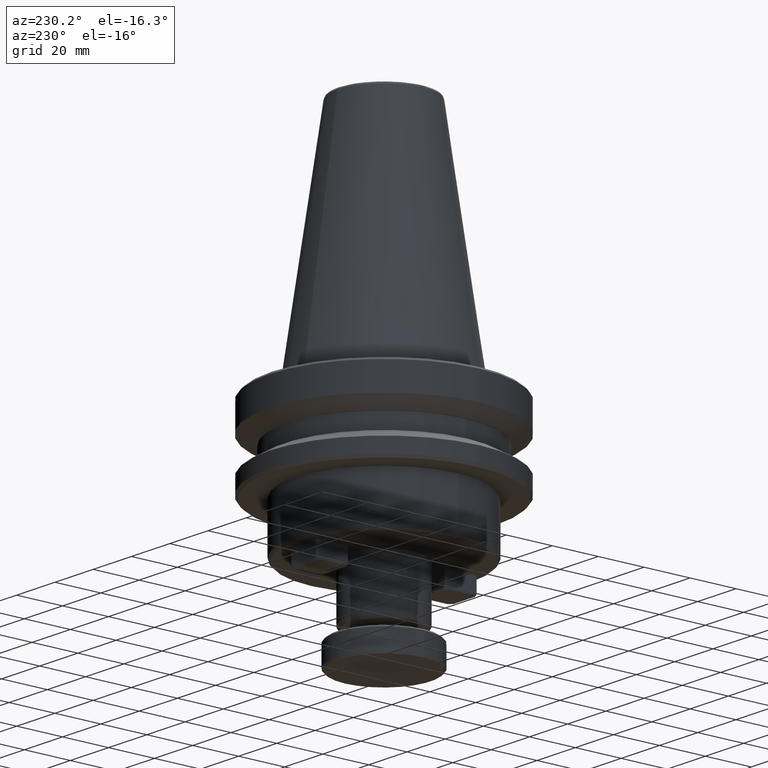
[diagram: clean part render]
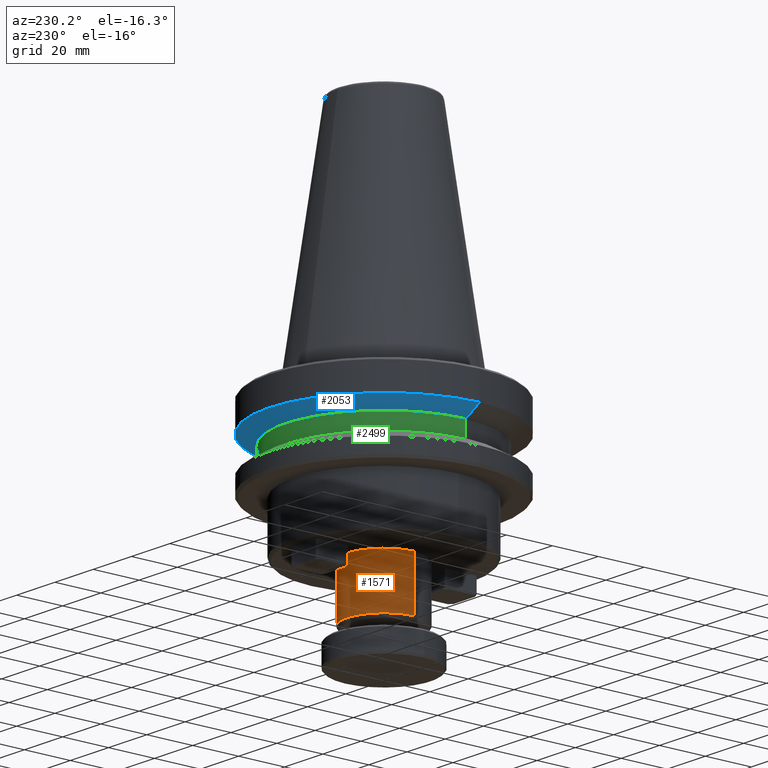
[diagram: same view with three faces highlighted in distinct colors, each labeled with its STEP entity id]
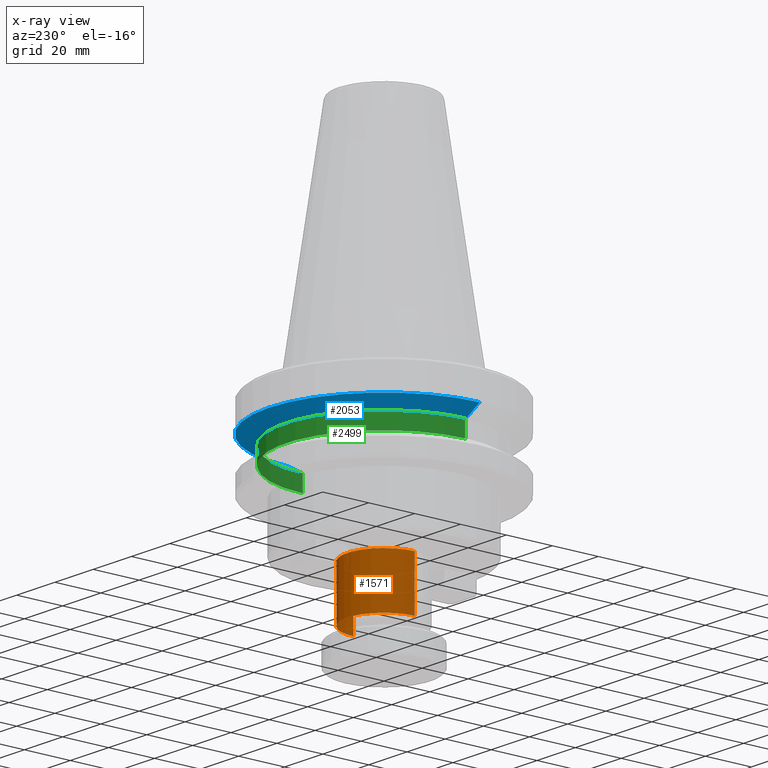
[diagram: x-ray of the same camera — body ghosted, the three highlighted faces saturated]
A machine part, auxiliary view with three faces highlighted in distinct colors.
The next image is the same camera in x-ray (body ghosted, the three faces saturated) — at least one of them is partly hidden behind the body in this view.
Their STEP definitions:

[orange] entity #1571 — the highlighted cylindrical surface (partial cylindrical patch) has radius 16 mm, axis along (0, 0, 1).
#92 = CARTESIAN_POINT ( 'NONE',  ( 0.0000000000000000000, 0.0000000000000000000, 118.5507178974871000 ) ) ;
#119 = EDGE_CURVE ( 'NONE', #840, #2500, #342, .T. ) ;
#281 = EDGE_CURVE ( 'NONE', #582, #2500, #1115, .T. ) ;
#342 = CIRCLE ( 'NONE', #1000, 16.00000000000000700 ) ;
#371 = FACE_OUTER_BOUND ( 'NONE', #2075, .T. ) ;
#492 = EDGE_CURVE ( 'NONE', #715, #840, #1220, .T. ) ;
#582 = VERTEX_POINT ( 'NONE', #1588 ) ;
#597 = VECTOR ( 'NONE', #2092, 1000.000000000000000 ) ;
#604 = CARTESIAN_POINT ( 'NONE',  ( 16.00000000000000700, 0.0000000000000000000, -60.00000000000001400 ) ) ;
#715 = VERTEX_POINT ( 'NONE', #895 ) ;
#730 = AXIS2_PLACEMENT_3D ( 'NONE', #92, #1397, #842 ) ;
#741 = VECTOR ( 'NONE', #1035, 1000.000000000000000 ) ;
#840 = VERTEX_POINT ( 'NONE', #604 ) ;
#842 = DIRECTION ( 'NONE',  ( 1.000000000000000000, 0.0000000000000000000, 0.0000000000000000000 ) ) ;
#861 = ORIENTED_EDGE ( 'NONE', *, *, #1983, .T. ) ;
#863 = ORIENTED_EDGE ( 'NONE', *, *, #281, .T. ) ;
#895 = CARTESIAN_POINT ( 'NONE',  ( 16.00000000000000700, 0.0000000000000000000, -82.52775681356645500 ) ) ;
#912 = ORIENTED_EDGE ( 'NONE', *, *, #492, .F. ) ;
#1000 = AXIS2_PLACEMENT_3D ( 'NONE', #1458, #1400, #1671 ) ;
#1035 = DIRECTION ( 'NONE',  ( 0.0000000000000000000, 0.0000000000000000000, 1.000000000000000000 ) ) ;
#1051 = CARTESIAN_POINT ( 'NONE',  ( 16.00000000000000700, 0.0000000000000000000, 118.5507178974871000 ) ) ;
#1115 = LINE ( 'NONE', #2623, #597 ) ;
#1220 = LINE ( 'NONE', #1051, #741 ) ;
#1397 = DIRECTION ( 'NONE',  ( 0.0000000000000000000, 0.0000000000000000000, 1.000000000000000000 ) ) ;
#1400 = DIRECTION ( 'NONE',  ( 0.0000000000000000000, 0.0000000000000000000, 1.000000000000000000 ) ) ;
#1434 = CARTESIAN_POINT ( 'NONE',  ( -16.00000000000000700, 1.959434878635766300E-015, -60.00000000000001400 ) ) ;
#1458 = CARTESIAN_POINT ( 'NONE',  ( 0.0000000000000000000, 0.0000000000000000000, -60.00000000000001400 ) ) ;
#1571 = ADVANCED_FACE ( 'NONE', ( #371 ), #2022, .T. ) ;
#1588 = CARTESIAN_POINT ( 'NONE',  ( -16.00000000000000700, 1.959434878635765900E-015, -82.52775681356645500 ) ) ;
#1671 = DIRECTION ( 'NONE',  ( 1.000000000000000000, 0.0000000000000000000, 0.0000000000000000000 ) ) ;
#1773 = CIRCLE ( 'NONE', #2102, 16.00000000000000700 ) ;
#1983 = EDGE_CURVE ( 'NONE', #715, #582, #1773, .T. ) ;
#2022 = CYLINDRICAL_SURFACE ( 'NONE', #730, 16.00000000000000700 ) ;
#2075 = EDGE_LOOP ( 'NONE', ( #861, #863, #2191, #912 ) ) ;
#2092 = DIRECTION ( 'NONE',  ( 0.0000000000000000000, 0.0000000000000000000, 1.000000000000000000 ) ) ;
#2102 = AXIS2_PLACEMENT_3D ( 'NONE', #2326, #2323, #2321 ) ;
#2191 = ORIENTED_EDGE ( 'NONE', *, *, #119, .F. ) ;
#2321 = DIRECTION ( 'NONE',  ( 1.000000000000000000, 0.0000000000000000000, 0.0000000000000000000 ) ) ;
#2323 = DIRECTION ( 'NONE',  ( 0.0000000000000000000, 0.0000000000000000000, 1.000000000000000000 ) ) ;
#2326 = CARTESIAN_POINT ( 'NONE',  ( 0.0000000000000000000, 0.0000000000000000000, -82.52775681356645500 ) ) ;
#2500 = VERTEX_POINT ( 'NONE', #1434 ) ;
#2623 = CARTESIAN_POINT ( 'NONE',  ( -16.00000000000000700, 1.959434878635766300E-015, 118.5507178974871000 ) ) ;

[blue] entity #2053 — the highlighted conical surface has half-angle 60 deg.
#37 = LINE ( 'NONE', #2546, #473 ) ;
#95 = AXIS2_PLACEMENT_3D ( 'NONE', #2121, #2110, #2164 ) ;
#153 = CONICAL_SURFACE ( 'NONE', #95, 50.00000000000002100, 1.047197551196597900 ) ;
#189 = ORIENTED_EDGE ( 'NONE', *, *, #1873, .F. ) ;
#257 = VERTEX_POINT ( 'NONE', #1261 ) ;
#291 = EDGE_LOOP ( 'NONE', ( #2699, #1149, #1717, #189 ) ) ;
#402 = DIRECTION ( 'NONE',  ( 1.000000000000000000, 0.0000000000000000000, 0.0000000000000000000 ) ) ;
#405 = DIRECTION ( 'NONE',  ( 0.0000000000000000000, 0.0000000000000000000, 1.000000000000000000 ) ) ;
#406 = CARTESIAN_POINT ( 'NONE',  ( 0.0000000000000000000, 0.0000000000000000000, -19.70000000000001000 ) ) ;
#473 = VECTOR ( 'NONE', #2528, 1000.000000000000000 ) ;
#519 = EDGE_CURVE ( 'NONE', #257, #2621, #684, .T. ) ;
#520 = VERTEX_POINT ( 'NONE', #1001 ) ;
#684 = CIRCLE ( 'NONE', #1440, 50.00000000000000000 ) ;
#818 = AXIS2_PLACEMENT_3D ( 'NONE', #406, #405, #402 ) ;
#879 = CIRCLE ( 'NONE', #818, 43.07217782649103600 ) ;
#911 = LINE ( 'NONE', #1118, #1951 ) ;
#930 = DIRECTION ( 'NONE',  ( 1.000000000000000000, 0.0000000000000000000, 0.0000000000000000000 ) ) ;
#940 = DIRECTION ( 'NONE',  ( 0.0000000000000000000, 0.0000000000000000000, 1.000000000000000000 ) ) ;
#949 = CARTESIAN_POINT ( 'NONE',  ( 0.0000000000000000000, 0.0000000000000000000, -15.70022000322675400 ) ) ;
#1001 = CARTESIAN_POINT ( 'NONE',  ( 43.07217782649103600, 0.0000000000000000000, -19.70000000000001000 ) ) ;
#1091 = CARTESIAN_POINT ( 'NONE',  ( -50.00000000000000000, 6.123233995736765300E-015, -15.70022000322675400 ) ) ;
#1095 = EDGE_CURVE ( 'NONE', #520, #1759, #879, .T. ) ;
#1105 = DIRECTION ( 'NONE',  ( -0.8660254037844387100, 1.060575238724906900E-016, 0.4999999999999998900 ) ) ;
#1118 = CARTESIAN_POINT ( 'NONE',  ( -50.00000000000002100, 6.123233995736768500E-015, -15.70022000322674000 ) ) ;
#1149 = ORIENTED_EDGE ( 'NONE', *, *, #2579, .T. ) ;
#1261 = CARTESIAN_POINT ( 'NONE',  ( 50.00000000000000000, 0.0000000000000000000, -15.70022000322675400 ) ) ;
#1440 = AXIS2_PLACEMENT_3D ( 'NONE', #949, #940, #930 ) ;
#1717 = ORIENTED_EDGE ( 'NONE', *, *, #519, .F. ) ;
#1759 = VERTEX_POINT ( 'NONE', #2631 ) ;
#1873 = EDGE_CURVE ( 'NONE', #520, #257, #37, .T. ) ;
#1951 = VECTOR ( 'NONE', #1105, 1000.000000000000000 ) ;
#2053 = ADVANCED_FACE ( 'NONE', ( #2626 ), #153, .T. ) ;
#2110 = DIRECTION ( 'NONE',  ( 0.0000000000000000000, 0.0000000000000000000, 1.000000000000000000 ) ) ;
#2121 = CARTESIAN_POINT ( 'NONE',  ( 0.0000000000000000000, 0.0000000000000000000, -15.70022000322674000 ) ) ;
#2164 = DIRECTION ( 'NONE',  ( 1.000000000000000000, 0.0000000000000000000, 0.0000000000000000000 ) ) ;
#2528 = DIRECTION ( 'NONE',  ( 0.8660254037844387100, 0.0000000000000000000, 0.4999999999999998900 ) ) ;
#2546 = CARTESIAN_POINT ( 'NONE',  ( 50.00000000000002100, 0.0000000000000000000, -15.70022000322674000 ) ) ;
#2579 = EDGE_CURVE ( 'NONE', #1759, #2621, #911, .T. ) ;
#2621 = VERTEX_POINT ( 'NONE', #1091 ) ;
#2626 = FACE_OUTER_BOUND ( 'NONE', #291, .T. ) ;
#2631 = CARTESIAN_POINT ( 'NONE',  ( -43.07217782649103600, 5.699027233244276000E-015, -19.70000000000001000 ) ) ;
#2699 = ORIENTED_EDGE ( 'NONE', *, *, #1095, .T. ) ;

[green] entity #2499 — the highlighted cylindrical surface (partial cylindrical patch) has radius 42.5 mm, axis along (0, 0, 1).
#188 = LINE ( 'NONE', #1059, #2427 ) ;
#217 = EDGE_CURVE ( 'NONE', #2347, #821, #1908, .T. ) ;
#271 = AXIS2_PLACEMENT_3D ( 'NONE', #1461, #1442, #1437 ) ;
#378 = CYLINDRICAL_SURFACE ( 'NONE', #271, 42.50000000000000000 ) ;
#427 = DIRECTION ( 'NONE',  ( 1.000000000000000000, 0.0000000000000000000, 0.0000000000000000000 ) ) ;
#429 = DIRECTION ( 'NONE',  ( -0.0000000000000000000, -0.0000000000000000000, -1.000000000000000000 ) ) ;
#432 = CARTESIAN_POINT ( 'NONE',  ( 0.0000000000000000000, 0.0000000000000000000, -19.70000000000001000 ) ) ;
#460 = CARTESIAN_POINT ( 'NONE',  ( -42.50000000000000000, 5.204748896376250900E-015, -19.70000000000001000 ) ) ;
#475 = EDGE_CURVE ( 'NONE', #2347, #620, #188, .T. ) ;
#482 = CARTESIAN_POINT ( 'NONE',  ( -42.50000000000000000, 5.204748896376250900E-015, 124.5046326327850600 ) ) ;
#496 = DIRECTION ( 'NONE',  ( 0.0000000000000000000, 0.0000000000000000000, 1.000000000000000000 ) ) ;
#530 = AXIS2_PLACEMENT_3D ( 'NONE', #432, #429, #427 ) ;
#620 = VERTEX_POINT ( 'NONE', #2735 ) ;
#645 = CARTESIAN_POINT ( 'NONE',  ( -42.50000000000000000, 5.204748896376250900E-015, -26.69999999999998900 ) ) ;
#722 = EDGE_LOOP ( 'NONE', ( #1952, #1892, #807, #910 ) ) ;
#807 = ORIENTED_EDGE ( 'NONE', *, *, #1057, .T. ) ;
#821 = VERTEX_POINT ( 'NONE', #645 ) ;
#910 = ORIENTED_EDGE ( 'NONE', *, *, #475, .F. ) ;
#952 = EDGE_CURVE ( 'NONE', #821, #1020, #1899, .T. ) ;
#1020 = VERTEX_POINT ( 'NONE', #460 ) ;
#1047 = DIRECTION ( 'NONE',  ( 0.0000000000000000000, 0.0000000000000000000, 1.000000000000000000 ) ) ;
#1057 = EDGE_CURVE ( 'NONE', #1020, #620, #2087, .T. ) ;
#1059 = CARTESIAN_POINT ( 'NONE',  ( 42.50000000000000000, 0.0000000000000000000, 124.5046326327850600 ) ) ;
#1297 = DIRECTION ( 'NONE',  ( 0.0000000000000000000, 0.0000000000000000000, 1.000000000000000000 ) ) ;
#1437 = DIRECTION ( 'NONE',  ( 1.000000000000000000, 0.0000000000000000000, 0.0000000000000000000 ) ) ;
#1442 = DIRECTION ( 'NONE',  ( 0.0000000000000000000, 0.0000000000000000000, 1.000000000000000000 ) ) ;
#1460 = FACE_OUTER_BOUND ( 'NONE', #722, .T. ) ;
#1461 = CARTESIAN_POINT ( 'NONE',  ( 0.0000000000000000000, 0.0000000000000000000, 124.5046326327850600 ) ) ;
#1667 = CARTESIAN_POINT ( 'NONE',  ( 42.50000000000000000, 0.0000000000000000000, -26.69999999999998900 ) ) ;
#1822 = VECTOR ( 'NONE', #496, 1000.000000000000000 ) ;
#1892 = ORIENTED_EDGE ( 'NONE', *, *, #952, .T. ) ;
#1899 = LINE ( 'NONE', #482, #1822 ) ;
#1908 = CIRCLE ( 'NONE', #2297, 42.50000000000000000 ) ;
#1952 = ORIENTED_EDGE ( 'NONE', *, *, #217, .T. ) ;
#2087 = CIRCLE ( 'NONE', #530, 42.50000000000000000 ) ;
#2297 = AXIS2_PLACEMENT_3D ( 'NONE', #2606, #1297, #2547 ) ;
#2347 = VERTEX_POINT ( 'NONE', #1667 ) ;
#2427 = VECTOR ( 'NONE', #1047, 1000.000000000000000 ) ;
#2499 = ADVANCED_FACE ( 'NONE', ( #1460 ), #378, .T. ) ;
#2547 = DIRECTION ( 'NONE',  ( 1.000000000000000000, 0.0000000000000000000, 0.0000000000000000000 ) ) ;
#2606 = CARTESIAN_POINT ( 'NONE',  ( 0.0000000000000000000, 0.0000000000000000000, -26.69999999999998900 ) ) ;
#2735 = CARTESIAN_POINT ( 'NONE',  ( 42.50000000000000000, 0.0000000000000000000, -19.70000000000001000 ) ) ;